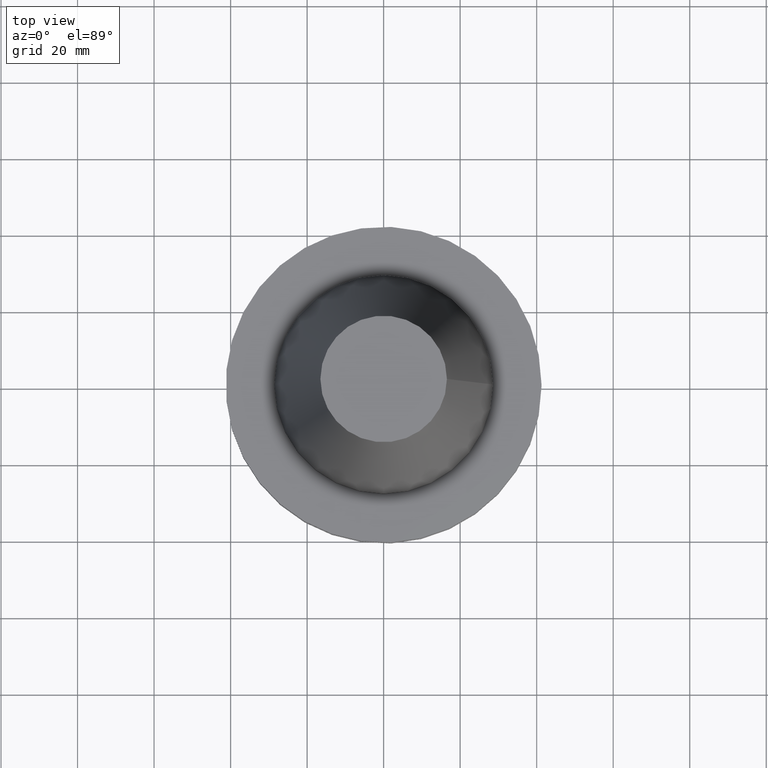
[diagram: clean part render]
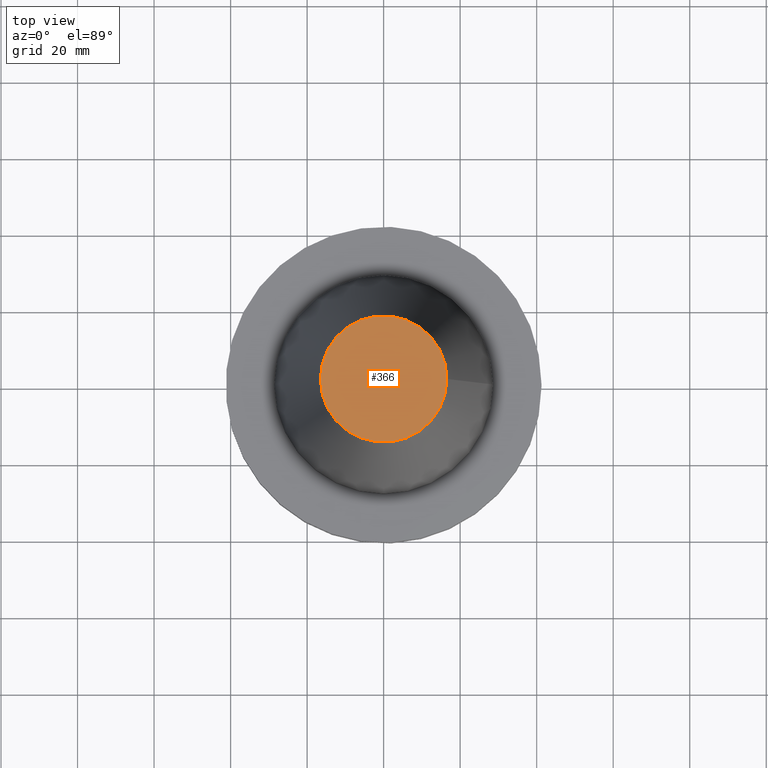
[diagram: same view with one face highlighted and labeled with its STEP entity id]
A machine part, top view. The second image highlights one B-rep face of the part: STEP entity #366.
In plain terms, the highlighted planar face has unit normal (0, 0, -1).
Its self-contained STEP definition (entity closure, byte-faithful):
#34 = CIRCLE ( 'NONE', #63, 16.53634466332832886 ) ;
#45 = EDGE_LOOP ( 'NONE', ( #112 ) ) ;
#63 = AXIS2_PLACEMENT_3D ( 'NONE', #108, #255, #320 ) ;
#81 = AXIS2_PLACEMENT_3D ( 'NONE', #357, #381, #330 ) ;
#108 = CARTESIAN_POINT ( 'NONE',  ( 0.000000000000000000, 0.000000000000000000, 82.55000000000001137 ) ) ;
#112 = ORIENTED_EDGE ( 'NONE', *, *, #375, .T. ) ;
#165 = FACE_OUTER_BOUND ( 'NONE', #45, .T. ) ;
#255 = DIRECTION ( 'NONE',  ( -0.000000000000000000, -0.000000000000000000, 1.000000000000000000 ) ) ;
#264 = VERTEX_POINT ( 'NONE', #274 ) ;
#274 = CARTESIAN_POINT ( 'NONE',  ( 16.53634466332832886, 0.000000000000000000, 82.55000000000001137 ) ) ;
#320 = DIRECTION ( 'NONE',  ( 1.000000000000000000, 0.000000000000000000, 0.000000000000000000 ) ) ;
#324 = PLANE ( 'NONE',  #81 ) ;
#330 = DIRECTION ( 'NONE',  ( -1.000000000000000000, 0.000000000000000000, -0.000000000000000000 ) ) ;
#357 = CARTESIAN_POINT ( 'NONE',  ( 0.000000000000000000, 16.53634466332832886, 82.55000000000001137 ) ) ;
#366 = ADVANCED_FACE ( 'NONE', ( #165 ), #324, .F. ) ;
#375 = EDGE_CURVE ( 'NONE', #264, #264, #34, .T. ) ;
#381 = DIRECTION ( 'NONE',  ( 0.000000000000000000, 0.000000000000000000, -1.000000000000000000 ) ) ;